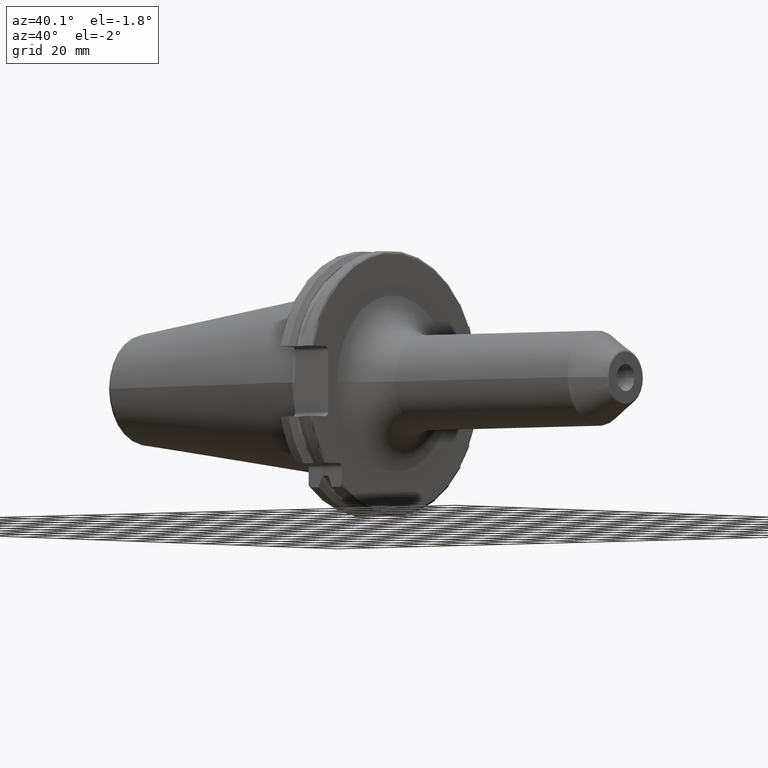
[diagram: clean part render]
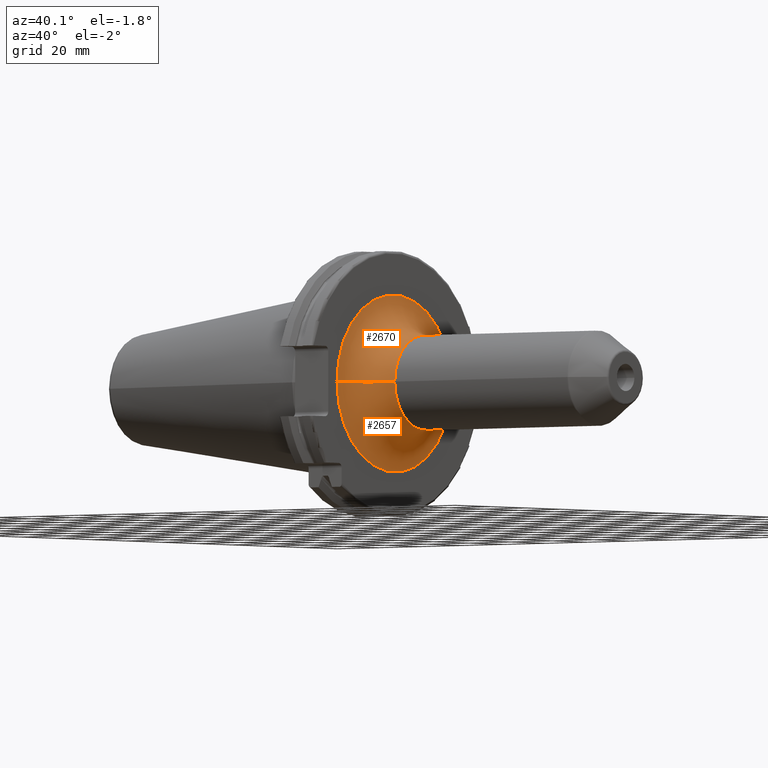
[diagram: same view with one multi-face feature highlighted, each face labeled with its STEP entity id]
A machine part, auxiliary view. The highlighted faces form ONE feature: a constant-radius fillet chain: 2 tangent blend faces with common blend radius 15 mm. The faces share edges in the B-rep.
Their STEP definitions:
[1] entity #2657 (Torus):
#172=CARTESIAN_POINT('',(1.905E1,0.E0,0.E0));
#173=DIRECTION('',(1.E0,0.E0,0.E0));
#174=DIRECTION('',(0.E0,-1.E0,0.E0));
#175=AXIS2_PLACEMENT_3D('',#172,#173,#174);
#952=CARTESIAN_POINT('',(3.405E1,-3.25E1,7.746081553961E-12));
#953=DIRECTION('',(0.E0,-2.383423319818E-13,-1.E0));
#954=DIRECTION('',(-1.E0,0.E0,0.E0));
#955=AXIS2_PLACEMENT_3D('',#952,#953,#954);
#957=CARTESIAN_POINT('',(3.405E1,3.25E1,-7.750522446059E-12));
#958=DIRECTION('',(0.E0,2.384776404130E-13,1.E0));
#959=DIRECTION('',(-1.E0,0.E0,0.E0));
#960=AXIS2_PLACEMENT_3D('',#957,#958,#959);
#1154=CARTESIAN_POINT('',(3.405E1,0.E0,0.E0));
#1155=DIRECTION('',(1.E0,0.E0,0.E0));
#1156=DIRECTION('',(0.E0,-1.E0,0.E0));
#1157=AXIS2_PLACEMENT_3D('',#1154,#1155,#1156);
#1627=CARTESIAN_POINT('',(1.905E1,-3.25E1,0.E0));
#1628=CARTESIAN_POINT('',(1.905E1,3.25E1,0.E0));
#1629=VERTEX_POINT('',#1627);
#1630=VERTEX_POINT('',#1628);
#1631=CARTESIAN_POINT('',(3.405E1,-1.75E1,0.E0));
#1632=CARTESIAN_POINT('',(3.405E1,1.75E1,0.E0));
#1633=VERTEX_POINT('',#1631);
#1634=VERTEX_POINT('',#1632);
#2643=CARTESIAN_POINT('',(3.405E1,0.E0,0.E0));
#2644=DIRECTION('',(1.E0,0.E0,0.E0));
#2645=DIRECTION('',(0.E0,-9.999613968234E-1,8.786629791455E-3));
#2646=AXIS2_PLACEMENT_3D('',#2643,#2644,#2645);
#2647=TOROIDAL_SURFACE('',#2646,3.25E1,1.5E1);
#2648=ORIENTED_EDGE('',*,*,#1890,.F.);
#2650=ORIENTED_EDGE('',*,*,#2649,.T.);
#2652=ORIENTED_EDGE('',*,*,#2651,.T.);
#2654=ORIENTED_EDGE('',*,*,#2653,.F.);
#2655=EDGE_LOOP('',(#2648,#2650,#2652,#2654));
#2656=FACE_OUTER_BOUND('',#2655,.F.);
#2657=ADVANCED_FACE('',(#2656),#2647,.F.);
#176=CIRCLE('',#175,3.25E1);
#956=CIRCLE('',#955,1.5E1);
#961=CIRCLE('',#960,1.5E1);
#1158=CIRCLE('',#1157,1.75E1);
#1890=EDGE_CURVE('',#1629,#1630,#176,.T.);
#2649=EDGE_CURVE('',#1629,#1633,#956,.T.);
#2651=EDGE_CURVE('',#1633,#1634,#1158,.T.);
#2653=EDGE_CURVE('',#1630,#1634,#961,.T.);
[2] entity #2670 (Torus):
#177=CARTESIAN_POINT('',(1.905E1,0.E0,0.E0));
#178=DIRECTION('',(1.E0,0.E0,0.E0));
#179=DIRECTION('',(0.E0,1.E0,0.E0));
#180=AXIS2_PLACEMENT_3D('',#177,#178,#179);
#952=CARTESIAN_POINT('',(3.405E1,-3.25E1,7.746081553961E-12));
#953=DIRECTION('',(0.E0,-2.383423319818E-13,-1.E0));
#954=DIRECTION('',(-1.E0,0.E0,0.E0));
#955=AXIS2_PLACEMENT_3D('',#952,#953,#954);
#957=CARTESIAN_POINT('',(3.405E1,3.25E1,-7.750522446059E-12));
#958=DIRECTION('',(0.E0,2.384776404130E-13,1.E0));
#959=DIRECTION('',(-1.E0,0.E0,0.E0));
#960=AXIS2_PLACEMENT_3D('',#957,#958,#959);
#990=CARTESIAN_POINT('',(3.405E1,0.E0,0.E0));
#991=DIRECTION('',(1.E0,0.E0,0.E0));
#992=DIRECTION('',(0.E0,1.E0,0.E0));
#993=AXIS2_PLACEMENT_3D('',#990,#991,#992);
#1627=CARTESIAN_POINT('',(1.905E1,-3.25E1,0.E0));
#1628=CARTESIAN_POINT('',(1.905E1,3.25E1,0.E0));
#1629=VERTEX_POINT('',#1627);
#1630=VERTEX_POINT('',#1628);
#1631=CARTESIAN_POINT('',(3.405E1,-1.75E1,0.E0));
#1632=CARTESIAN_POINT('',(3.405E1,1.75E1,0.E0));
#1633=VERTEX_POINT('',#1631);
#1634=VERTEX_POINT('',#1632);
#2658=CARTESIAN_POINT('',(3.405E1,0.E0,0.E0));
#2659=DIRECTION('',(1.E0,0.E0,0.E0));
#2660=DIRECTION('',(0.E0,9.999613968234E-1,-8.786629791456E-3));
#2661=AXIS2_PLACEMENT_3D('',#2658,#2659,#2660);
#2662=TOROIDAL_SURFACE('',#2661,3.25E1,1.5E1);
#2663=ORIENTED_EDGE('',*,*,#1892,.F.);
#2664=ORIENTED_EDGE('',*,*,#2653,.T.);
#2666=ORIENTED_EDGE('',*,*,#2665,.T.);
#2667=ORIENTED_EDGE('',*,*,#2649,.F.);
#2668=EDGE_LOOP('',(#2663,#2664,#2666,#2667));
#2669=FACE_OUTER_BOUND('',#2668,.F.);
#2670=ADVANCED_FACE('',(#2669),#2662,.F.);
#181=CIRCLE('',#180,3.25E1);
#956=CIRCLE('',#955,1.5E1);
#961=CIRCLE('',#960,1.5E1);
#994=CIRCLE('',#993,1.75E1);
#1892=EDGE_CURVE('',#1630,#1629,#181,.T.);
#2649=EDGE_CURVE('',#1629,#1633,#956,.T.);
#2653=EDGE_CURVE('',#1630,#1634,#961,.T.);
#2665=EDGE_CURVE('',#1634,#1633,#994,.T.);